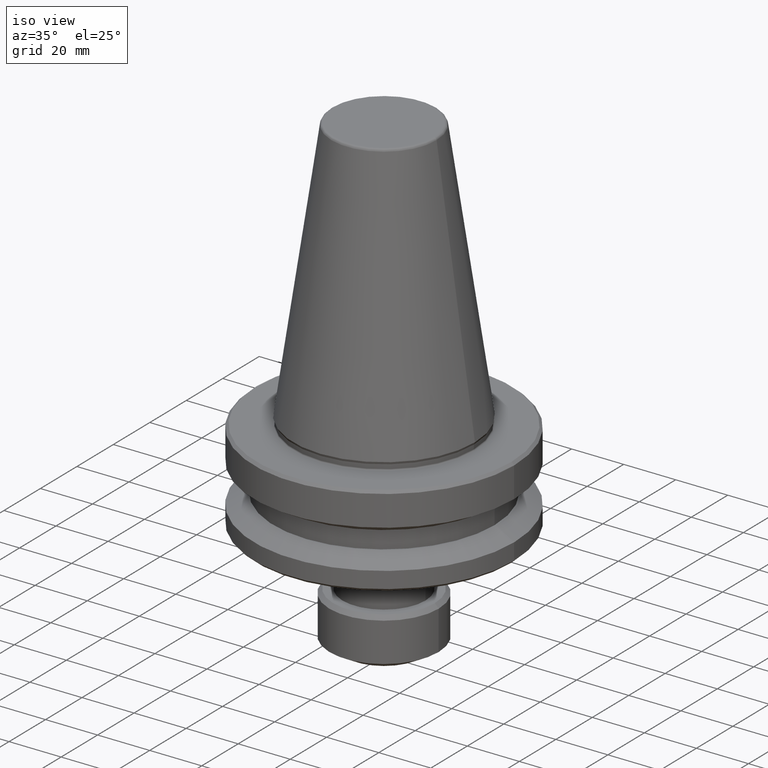
[diagram: clean part render]
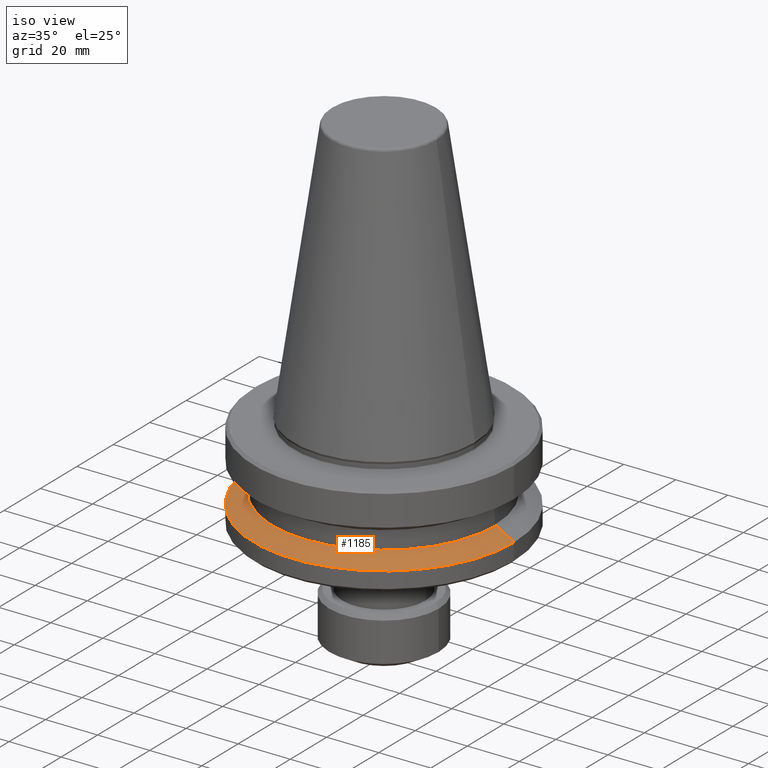
[diagram: same view with one face highlighted and labeled with its STEP entity id]
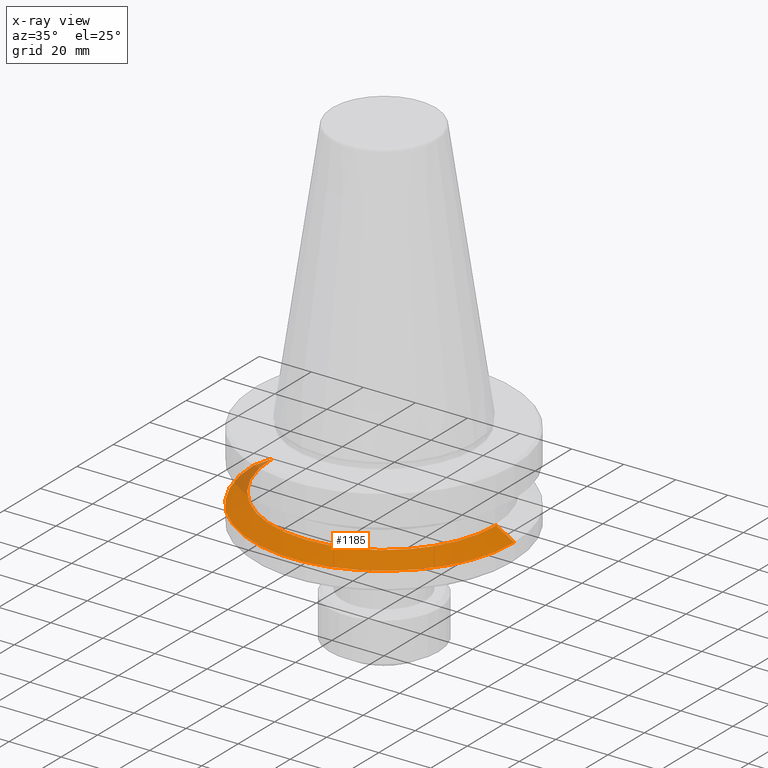
[diagram: x-ray of the same camera — body ghosted, the highlighted face saturated]
A machine part, iso view. The second image highlights one B-rep face of the part: STEP entity #1185.
The next image is the same camera in x-ray: the body ghosted, the highlighted face saturated — about 5% of this face is hidden behind the body in this view.
In plain terms, the highlighted conical surface has half-angle 60 deg.
Its self-contained STEP definition (entity closure, byte-faithful):
#85 = EDGE_CURVE ( 'NONE', #484, #847, #175, .T. ) ;
#161 = CARTESIAN_POINT ( 'NONE',  ( 0.0000000000000000000, 0.0000000000000000000, -30.69977999677371700 ) ) ;
#175 = LINE ( 'NONE', #481, #1159 ) ;
#187 = CIRCLE ( 'NONE', #200, 50.00000000000726200 ) ;
#194 = ORIENTED_EDGE ( 'NONE', *, *, #85, .T. ) ;
#200 = AXIS2_PLACEMENT_3D ( 'NONE', #161, #838, #268 ) ;
#241 = AXIS2_PLACEMENT_3D ( 'NONE', #1201, #542, #1192 ) ;
#243 = CARTESIAN_POINT ( 'NONE',  ( 43.07217782649696900, 5.699027233245083800E-015, -26.69999999999968300 ) ) ;
#268 = DIRECTION ( 'NONE',  ( 1.000000000000000000, 0.0000000000000000000, 0.0000000000000000000 ) ) ;
#371 = CARTESIAN_POINT ( 'NONE',  ( -43.07217782649696900, 0.0000000000000000000, -26.69999999999968300 ) ) ;
#407 = CARTESIAN_POINT ( 'NONE',  ( 0.0000000000000000000, 0.0000000000000000000, -26.69999999999968300 ) ) ;
#431 = DIRECTION ( 'NONE',  ( 0.8660254037844381500, 1.060575238724906300E-016, -0.5000000000000008900 ) ) ;
#441 = ORIENTED_EDGE ( 'NONE', *, *, #1231, .T. ) ;
#468 = CONICAL_SURFACE ( 'NONE', #241, 50.00000000000726200, 1.047197551196596700 ) ;
#481 = CARTESIAN_POINT ( 'NONE',  ( -50.00000000000726200, 0.0000000000000000000, -30.69977999677371700 ) ) ;
#484 = VERTEX_POINT ( 'NONE', #371 ) ;
#488 = ORIENTED_EDGE ( 'NONE', *, *, #1108, .F. ) ;
#500 = DIRECTION ( 'NONE',  ( 1.000000000000000000, 0.0000000000000000000, 0.0000000000000000000 ) ) ;
#515 = CARTESIAN_POINT ( 'NONE',  ( 50.00000000000726200, 0.0000000000000000000, -30.69977999677371700 ) ) ;
#542 = DIRECTION ( 'NONE',  ( 0.0000000000000000000, 0.0000000000000000000, -1.000000000000000000 ) ) ;
#584 = DIRECTION ( 'NONE',  ( -0.8660254037844381500, 0.0000000000000000000, -0.5000000000000008900 ) ) ;
#648 = AXIS2_PLACEMENT_3D ( 'NONE', #407, #1065, #500 ) ;
#650 = LINE ( 'NONE', #815, #723 ) ;
#675 = CARTESIAN_POINT ( 'NONE',  ( -50.00000000000726200, 6.123233995737655100E-015, -30.69977999677371700 ) ) ;
#723 = VECTOR ( 'NONE', #431, 1000.000000000000000 ) ;
#753 = EDGE_LOOP ( 'NONE', ( #488, #1199, #194, #441 ) ) ;
#757 = FACE_OUTER_BOUND ( 'NONE', #753, .T. ) ;
#809 = CIRCLE ( 'NONE', #648, 43.07217782649696900 ) ;
#815 = CARTESIAN_POINT ( 'NONE',  ( 50.00000000000726200, 6.123233995737655100E-015, -30.69977999677371700 ) ) ;
#838 = DIRECTION ( 'NONE',  ( -0.0000000000000000000, -0.0000000000000000000, 1.000000000000000000 ) ) ;
#847 = VERTEX_POINT ( 'NONE', #675 ) ;
#909 = EDGE_CURVE ( 'NONE', #484, #1103, #809, .T. ) ;
#1004 = VERTEX_POINT ( 'NONE', #515 ) ;
#1065 = DIRECTION ( 'NONE',  ( -0.0000000000000000000, -0.0000000000000000000, 1.000000000000000000 ) ) ;
#1103 = VERTEX_POINT ( 'NONE', #243 ) ;
#1108 = EDGE_CURVE ( 'NONE', #1103, #1004, #650, .T. ) ;
#1159 = VECTOR ( 'NONE', #584, 1000.000000000000000 ) ;
#1185 = ADVANCED_FACE ( 'NONE', ( #757 ), #468, .T. ) ;
#1192 = DIRECTION ( 'NONE',  ( -1.000000000000000000, 0.0000000000000000000, 0.0000000000000000000 ) ) ;
#1199 = ORIENTED_EDGE ( 'NONE', *, *, #909, .F. ) ;
#1201 = CARTESIAN_POINT ( 'NONE',  ( 0.0000000000000000000, 0.0000000000000000000, -30.69977999677371700 ) ) ;
#1231 = EDGE_CURVE ( 'NONE', #847, #1004, #187, .T. ) ;